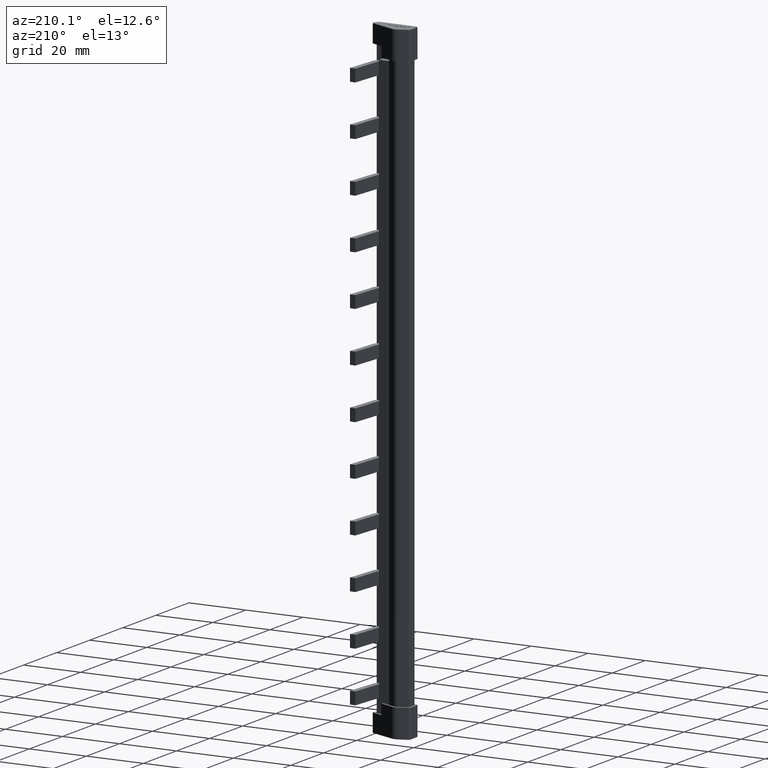
[diagram: clean part render]
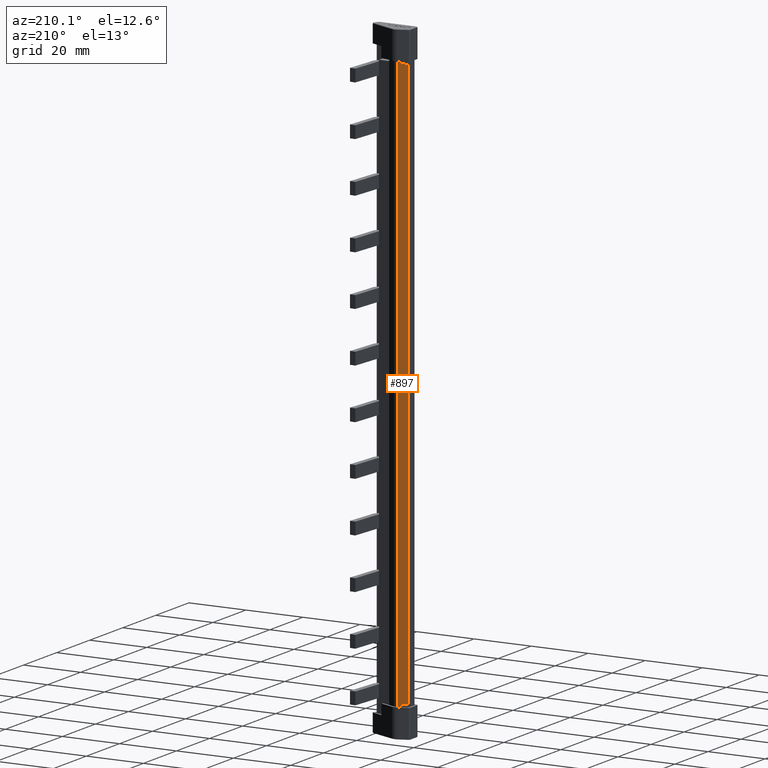
[diagram: same view with one face highlighted and labeled with its STEP entity id]
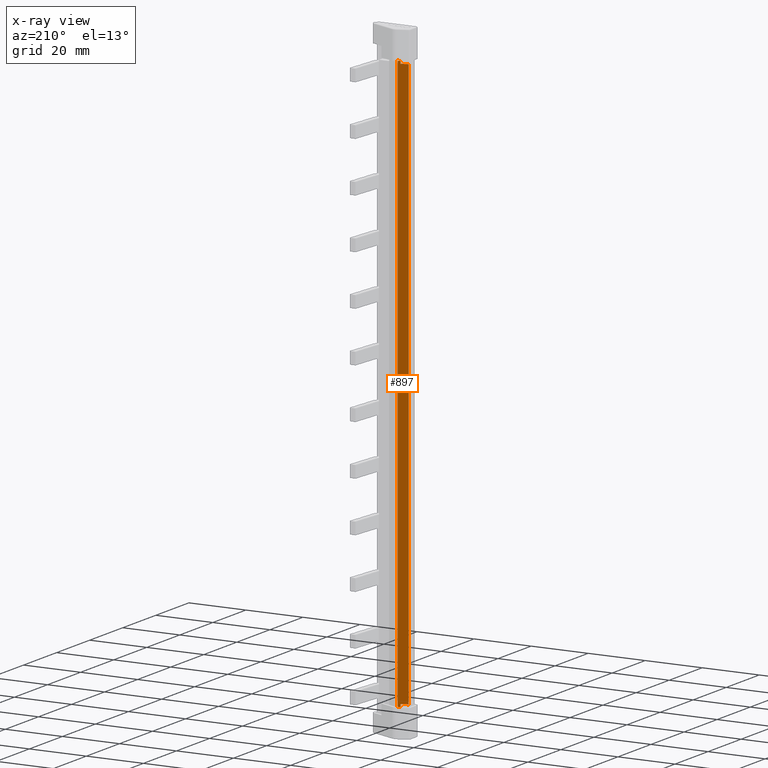
[diagram: x-ray of the same camera — body ghosted, the highlighted face saturated]
A machine part, auxiliary view. The second image highlights one B-rep face of the part: STEP entity #897.
The next image is the same camera in x-ray: the body ghosted, the highlighted face saturated — about 0% of this face is hidden behind the body in this view.
In plain terms, the highlighted planar face has unit normal (-0.3339, 0.9426, 0).
Its self-contained STEP definition (entity closure, byte-faithful):
#436 = PLANE ( 'NONE',  #4719 ) ;
#467 = FACE_OUTER_BOUND ( 'NONE', #20501, .T. ) ;
#476 = DIRECTION ( 'NONE',  ( -0.3338506395536475800, 0.9426259865236161800, 0.0000000000000000000 ) ) ;
#479 = CARTESIAN_POINT ( 'NONE',  ( 1.856509959660052100, 4.798316931443761000, 199.0000000000000000 ) ) ;
#490 = DIRECTION ( 'NONE',  ( -0.9426259865236160700, -0.3338506395536475200, 0.0000000000000000000 ) ) ;
#897 = ADVANCED_FACE ( 'NONE', ( #467 ), #436, .T. ) ;
#3153 = EDGE_CURVE ( 'NONE', #15625, #18626, #9893, .T. ) ;
#4719 = AXIS2_PLACEMENT_3D ( 'NONE', #479, #476, #490 ) ;
#7203 = EDGE_CURVE ( 'NONE', #15625, #15635, #9463, .T. ) ;
#7515 = EDGE_CURVE ( 'NONE', #18626, #18533, #17791, .T. ) ;
#7549 = EDGE_CURVE ( 'NONE', #18637, #18685, #17872, .T. ) ;
#7558 = EDGE_CURVE ( 'NONE', #18629, #18685, #17938, .T. ) ;
#7559 = EDGE_CURVE ( 'NONE', #18694, #18533, #17933, .T. ) ;
#7564 = EDGE_CURVE ( 'NONE', #18629, #18694, #17912, .T. ) ;
#7569 = EDGE_CURVE ( 'NONE', #18637, #15635, #17992, .T. ) ;
#8879 = CARTESIAN_POINT ( 'NONE',  ( 1.856509959878180000, 4.798316931521083200, 9.099999999999907300 ) ) ;
#8927 = CARTESIAN_POINT ( 'NONE',  ( 1.856509959793907200, 4.798316931491484600, 10.00000000000000900 ) ) ;
#9221 = CARTESIAN_POINT ( 'NONE',  ( -0.4999997511312341300, 3.963709902452906800, 209.0000000000000300 ) ) ;
#9251 = CARTESIAN_POINT ( 'NONE',  ( 1.856509959767359600, 4.798316931481772400, 209.9000000000000100 ) ) ;
#9264 = CARTESIAN_POINT ( 'NONE',  ( 1.856509959793907200, 4.798316931491484600, 209.0000000000000300 ) ) ;
#9286 = CARTESIAN_POINT ( 'NONE',  ( 2.698998958767269600, 5.096701968602029200, 9.099999999999857500 ) ) ;
#9287 = CARTESIAN_POINT ( 'NONE',  ( 2.698998958722938800, 5.096701968994282500, 209.9000000000000100 ) ) ;
#9296 = CARTESIAN_POINT ( 'NONE',  ( -0.4999997511312341300, 3.963709902452906800, 9.999999999999994700 ) ) ;
#9463 = LINE ( 'NONE', #9495, #21189 ) ;
#9488 = DIRECTION ( 'NONE',  ( -0.0000000000000000000, -0.0000000000000000000, -1.000000000000000000 ) ) ;
#9495 = CARTESIAN_POINT ( 'NONE',  ( 1.856509959793907200, 4.798316931491484600, 199.0000000000000000 ) ) ;
#9893 = LINE ( 'NONE', #9903, #13556 ) ;
#9903 = CARTESIAN_POINT ( 'NONE',  ( -0.4999997511312341300, 3.963709902452906800, 9.999999999999994700 ) ) ;
#9927 = DIRECTION ( 'NONE',  ( -0.9426259871288830100, -0.3338506378446786100, 7.098204245721026300E-024 ) ) ;
#13556 = VECTOR ( 'NONE', #9927, 1000.000000000000100 ) ;
#15056 = ORIENTED_EDGE ( 'NONE', *, *, #7515, .T. ) ;
#15080 = ORIENTED_EDGE ( 'NONE', *, *, #7203, .F. ) ;
#15084 = ORIENTED_EDGE ( 'NONE', *, *, #3153, .T. ) ;
#15107 = ORIENTED_EDGE ( 'NONE', *, *, #7564, .F. ) ;
#15130 = ORIENTED_EDGE ( 'NONE', *, *, #7558, .T. ) ;
#15150 = ORIENTED_EDGE ( 'NONE', *, *, #7559, .F. ) ;
#15224 = ORIENTED_EDGE ( 'NONE', *, *, #7569, .T. ) ;
#15241 = ORIENTED_EDGE ( 'NONE', *, *, #7549, .F. ) ;
#15625 = VERTEX_POINT ( 'NONE', #8927 ) ;
#15635 = VERTEX_POINT ( 'NONE', #8879 ) ;
#17787 = CARTESIAN_POINT ( 'NONE',  ( -0.4999997511312341300, 3.963709902452906800, 1.368580225419524500 ) ) ;
#17790 = DIRECTION ( 'NONE',  ( 0.0000000000000000000, 0.0000000000000000000, 1.000000000000000000 ) ) ;
#17791 = LINE ( 'NONE', #17787, #21912 ) ;
#17872 = LINE ( 'NONE', #17893, #21987 ) ;
#17873 = DIRECTION ( 'NONE',  ( 1.174935236590071400E-018, 5.041208906165829300E-019, 1.000000000000000000 ) ) ;
#17893 = CARTESIAN_POINT ( 'NONE',  ( 2.698998959062129300, 5.096701968298490600, 219.0101000000001100 ) ) ;
#17912 = LINE ( 'NONE', #17913, #22044 ) ;
#17913 = CARTESIAN_POINT ( 'NONE',  ( 1.856509959793907200, 4.798316931491484600, 199.0000000000000000 ) ) ;
#17914 = DIRECTION ( 'NONE',  ( -0.0000000000000000000, -0.0000000000000000000, -1.000000000000000000 ) ) ;
#17930 = CARTESIAN_POINT ( 'NONE',  ( -0.4999997511312341300, 3.963709902452906800, 209.0000000000000300 ) ) ;
#17933 = LINE ( 'NONE', #17930, #22147 ) ;
#17938 = LINE ( 'NONE', #17939, #22105 ) ;
#17939 = CARTESIAN_POINT ( 'NONE',  ( 1.856509959660052100, 4.798316931443761000, 209.9000000000000100 ) ) ;
#17940 = DIRECTION ( 'NONE',  ( -0.9426259871288830100, -0.3338506378446786100, -0.0000000000000000000 ) ) ;
#17956 = DIRECTION ( 'NONE',  ( 0.9426259865236160700, 0.3338506395536475200, -0.0000000000000000000 ) ) ;
#17970 = DIRECTION ( 'NONE',  ( -0.9426259865236160700, -0.3338506395536475200, 0.0000000000000000000 ) ) ;
#17974 = CARTESIAN_POINT ( 'NONE',  ( 1.856509959660052100, 4.798316931443761000, 9.099999999999802500 ) ) ;
#17992 = LINE ( 'NONE', #17974, #22057 ) ;
#18533 = VERTEX_POINT ( 'NONE', #9221 ) ;
#18626 = VERTEX_POINT ( 'NONE', #9296 ) ;
#18629 = VERTEX_POINT ( 'NONE', #9251 ) ;
#18637 = VERTEX_POINT ( 'NONE', #9286 ) ;
#18685 = VERTEX_POINT ( 'NONE', #9287 ) ;
#18694 = VERTEX_POINT ( 'NONE', #9264 ) ;
#20501 = EDGE_LOOP ( 'NONE', ( #15130, #15241, #15224, #15080, #15084, #15056, #15150, #15107 ) ) ;
#21189 = VECTOR ( 'NONE', #9488, 1000.000000000000000 ) ;
#21912 = VECTOR ( 'NONE', #17790, 1000.000000000000000 ) ;
#21987 = VECTOR ( 'NONE', #17873, 1000.000000000000000 ) ;
#22044 = VECTOR ( 'NONE', #17914, 1000.000000000000000 ) ;
#22057 = VECTOR ( 'NONE', #17970, 1000.000000000000100 ) ;
#22105 = VECTOR ( 'NONE', #17956, 1000.000000000000100 ) ;
#22147 = VECTOR ( 'NONE', #17940, 1000.000000000000000 ) ;